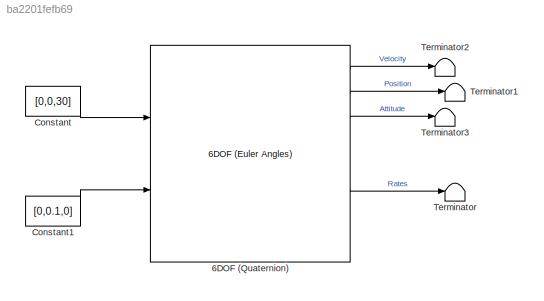
MODEL slx_ba2201fefb69
KIND model
CONFIG AbsTol = auto
CONFIG EnableMultiTasking = off
CONFIG FixedStep = auto
CONFIG MaxStep = auto
CONFIG MinStep = auto
CONFIG RelTol = 1e-3
CONFIG SampleTimeConstraint = Unconstrained
CONFIG SolverName = VariableStepAuto
CONFIG StartTime = 0.0
CONFIG StopTime = 50
BLOCK [Reference] 6DOF (Quaternion)  REF=shared6dof/6DOF (Euler Angles)
  Ports = [2, 8]
  SourceBlock = shared6dof/6DOF (Euler Angles)
  SourceProductBaseCode = AE,PW,DR,MT,VE
  SourceType = 6DOF EoM (Body Axis)
BLOCK [Constant] Constant
  Value = [0,0,30]
BLOCK [Constant] Constant1
  Value = [0,0.1,0]
BLOCK [Terminator] Terminator
BLOCK [Terminator] Terminator1
BLOCK [Terminator] Terminator2
BLOCK [Terminator] Terminator3
LINE 6DOF (Quaternion):1 -> Terminator2:1
LINE 6DOF (Quaternion):2 -> Terminator1:1
LINE 6DOF (Quaternion):3 -> Terminator3:1
LINE 6DOF (Quaternion):6 -> Terminator:1
LINE Constant1:1 -> 6DOF (Quaternion):2
LINE Constant:1 -> 6DOF (Quaternion):1
